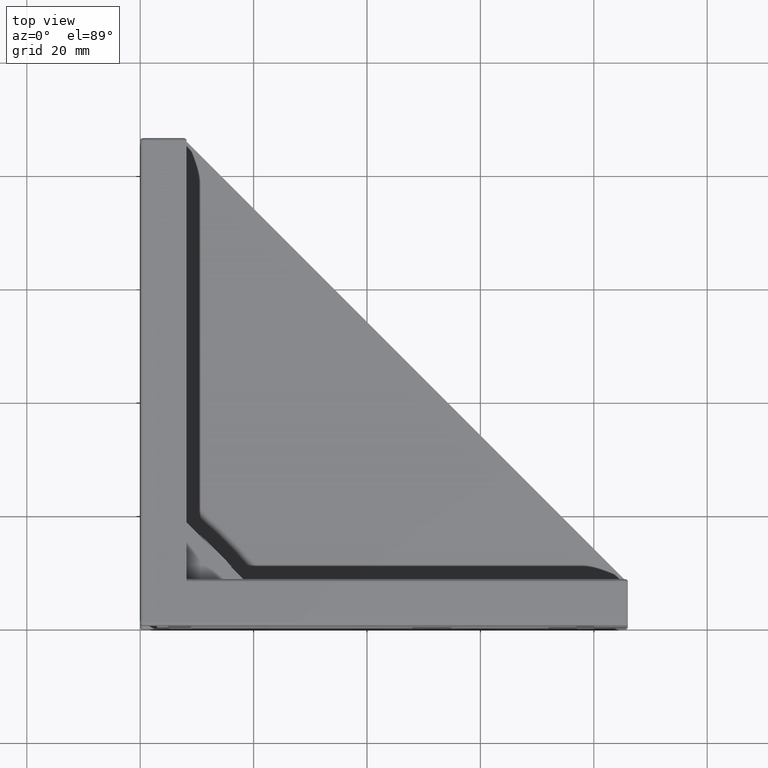
[diagram: clean part render]
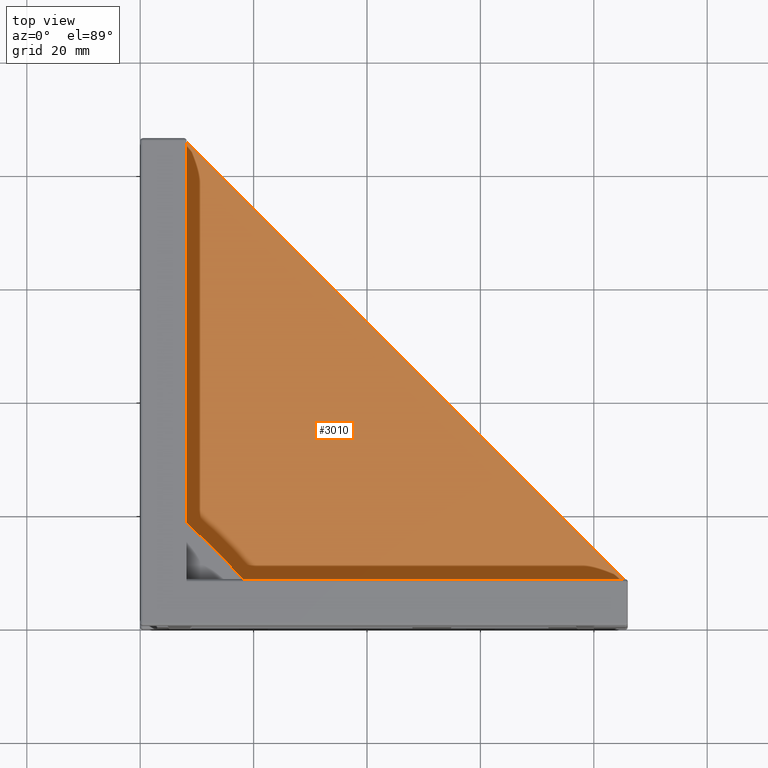
[diagram: same view with one face highlighted and labeled with its STEP entity id]
A machine part, top view. The second image highlights one B-rep face of the part: STEP entity #3010.
In plain terms, the highlighted planar face has unit normal (0, 0, -1).
Its self-contained STEP definition (entity closure, byte-faithful):
#152=PLANE('',#3283);
#266=FACE_OUTER_BOUND('',#455,.T.);
#455=EDGE_LOOP('',(#2333,#2334,#2335,#2336,#2337,#2338,#2339,#2340,#2341));
#731=LINE('',#4932,#1014);
#735=LINE('',#4947,#1018);
#736=LINE('',#4951,#1019);
#737=LINE('',#4953,#1020);
#738=LINE('',#4956,#1021);
#1014=VECTOR('',#3923,10.);
#1018=VECTOR('',#3939,10.);
#1019=VECTOR('',#3942,10.);
#1020=VECTOR('',#3943,10.);
#1021=VECTOR('',#3946,10.);
#1173=CIRCLE('',#3275,0.5);
#1176=CIRCLE('',#3282,0.5);
#1177=CIRCLE('',#3284,0.5);
#1178=CIRCLE('',#3285,0.5);
#1391=VERTEX_POINT('',#4920);
#1392=VERTEX_POINT('',#4922);
#1395=VERTEX_POINT('',#4930);
#1399=VERTEX_POINT('',#4942);
#1400=VERTEX_POINT('',#4946);
#1401=VERTEX_POINT('',#4948);
#1402=VERTEX_POINT('',#4950);
#1403=VERTEX_POINT('',#4952);
#1404=VERTEX_POINT('',#4954);
#1731=EDGE_CURVE('',#1391,#1392,#1173,.T.);
#1736=EDGE_CURVE('',#1395,#1391,#731,.T.);
#1742=EDGE_CURVE('',#1399,#1395,#1176,.T.);
#1743=EDGE_CURVE('',#1399,#1400,#735,.T.);
#1744=EDGE_CURVE('',#1400,#1401,#1177,.T.);
#1745=EDGE_CURVE('',#1401,#1402,#736,.T.);
#1746=EDGE_CURVE('',#1403,#1402,#737,.T.);
#1747=EDGE_CURVE('',#1404,#1403,#1178,.F.);
#1748=EDGE_CURVE('',#1404,#1392,#738,.T.);
#2333=ORIENTED_EDGE('',*,*,#1731,.F.);
#2334=ORIENTED_EDGE('',*,*,#1736,.F.);
#2335=ORIENTED_EDGE('',*,*,#1742,.F.);
#2336=ORIENTED_EDGE('',*,*,#1743,.T.);
#2337=ORIENTED_EDGE('',*,*,#1744,.T.);
#2338=ORIENTED_EDGE('',*,*,#1745,.T.);
#2339=ORIENTED_EDGE('',*,*,#1746,.F.);
#2340=ORIENTED_EDGE('',*,*,#1747,.F.);
#2341=ORIENTED_EDGE('',*,*,#1748,.T.);
#3010=ADVANCED_FACE('',(#266),#152,.F.);
#3275=AXIS2_PLACEMENT_3D('',#4923,#3914,#3915);
#3282=AXIS2_PLACEMENT_3D('',#4944,#3935,#3936);
#3283=AXIS2_PLACEMENT_3D('',#4945,#3937,#3938);
#3284=AXIS2_PLACEMENT_3D('',#4949,#3940,#3941);
#3285=AXIS2_PLACEMENT_3D('',#4955,#3944,#3945);
#3914=DIRECTION('center_axis',(0.,2.28323501208258E-16,-1.));
#3915=DIRECTION('ref_axis',(0.923879532511287,0.382683432365089,0.));
#3923=DIRECTION('',(0.707106781186547,-0.707106781186548,-1.61449096008614E-16));
#3935=DIRECTION('center_axis',(0.,2.28323501208258E-16,-1.));
#3936=DIRECTION('ref_axis',(0.38268343236508,0.923879532511291,0.));
#3937=DIRECTION('center_axis',(0.,2.28323501208258E-16,-1.));
#3938=DIRECTION('ref_axis',(0.,-1.,-2.28323501208258E-16));
#3939=DIRECTION('',(-1.,0.,0.));
#3940=DIRECTION('center_axis',(0.,2.28323501208258E-16,-1.));
#3941=DIRECTION('ref_axis',(0.707106781186543,0.707106781186552,0.));
#3942=DIRECTION('',(0.,-1.,-2.28323501208258E-16));
#3943=DIRECTION('',(-1.,0.,0.));
#3944=DIRECTION('center_axis',(0.,2.28323501208258E-16,-1.));
#3945=DIRECTION('ref_axis',(0.707106781186552,0.707106781186543,0.));
#3946=DIRECTION('',(0.,1.,2.28323501208258E-16));
#4920=CARTESIAN_POINT('',(85.8535533905932,8.34644660940675,-15.5));
#4922=CARTESIAN_POINT('',(86.,7.99289321881348,-15.5));
#4923=CARTESIAN_POINT('Origin',(85.5,7.99289321881348,-15.5));
#4930=CARTESIAN_POINT('',(8.34644660940675,85.8535533905933,-15.5));
#4932=CARTESIAN_POINT('',(66.55,27.65,-15.5));
#4942=CARTESIAN_POINT('',(7.99289321881347,86.,-15.5));
#4944=CARTESIAN_POINT('Origin',(7.99289321881347,85.5,-15.5));
#4945=CARTESIAN_POINT('Origin',(86.,86.,-15.5));
#4946=CARTESIAN_POINT('',(7.7,86.,-15.5));
#4947=CARTESIAN_POINT('',(47.1,86.,-15.5));
#4948=CARTESIAN_POINT('',(8.2,85.5,-15.5));
#4949=CARTESIAN_POINT('Origin',(7.7,85.5,-15.5));
#4950=CARTESIAN_POINT('',(8.2,8.2,-15.5));
#4951=CARTESIAN_POINT('',(8.2,66.55,-15.5));
#4952=CARTESIAN_POINT('',(85.5,8.2,-15.5));
#4953=CARTESIAN_POINT('',(86.,8.2,-15.5));
#4954=CARTESIAN_POINT('',(86.,7.7,-15.5));
#4955=CARTESIAN_POINT('Origin',(85.5,7.7,-15.5));
#4956=CARTESIAN_POINT('',(86.,43.,-15.5));